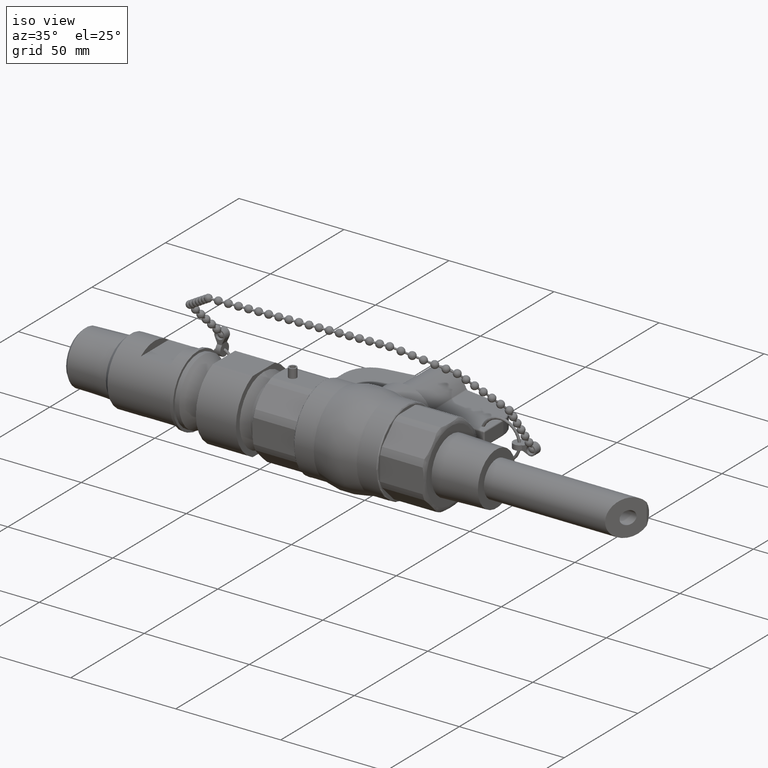
[diagram: clean part render]
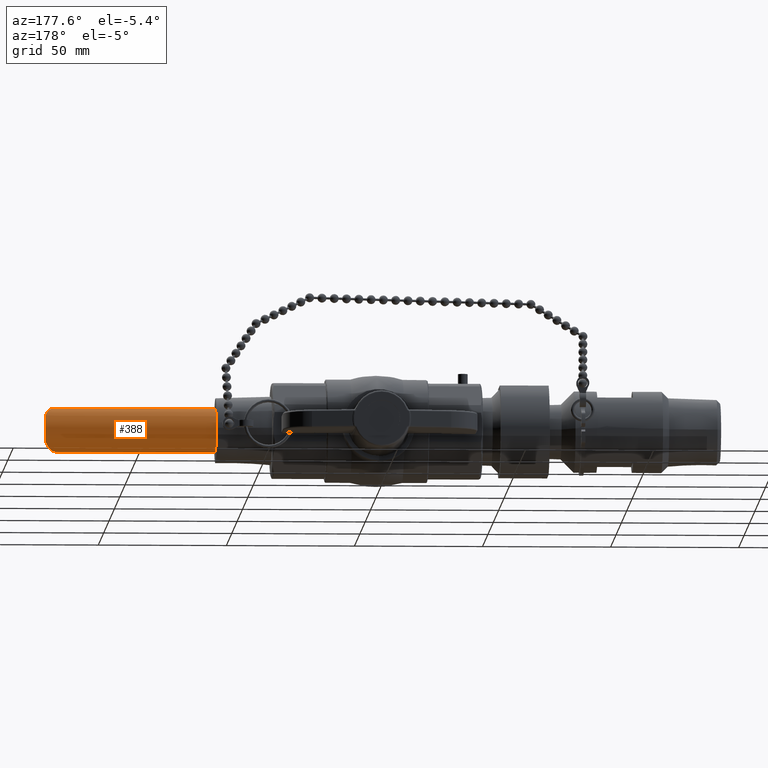
[diagram: tour spotlight — one face highlighted and labeled with its STEP entity id]
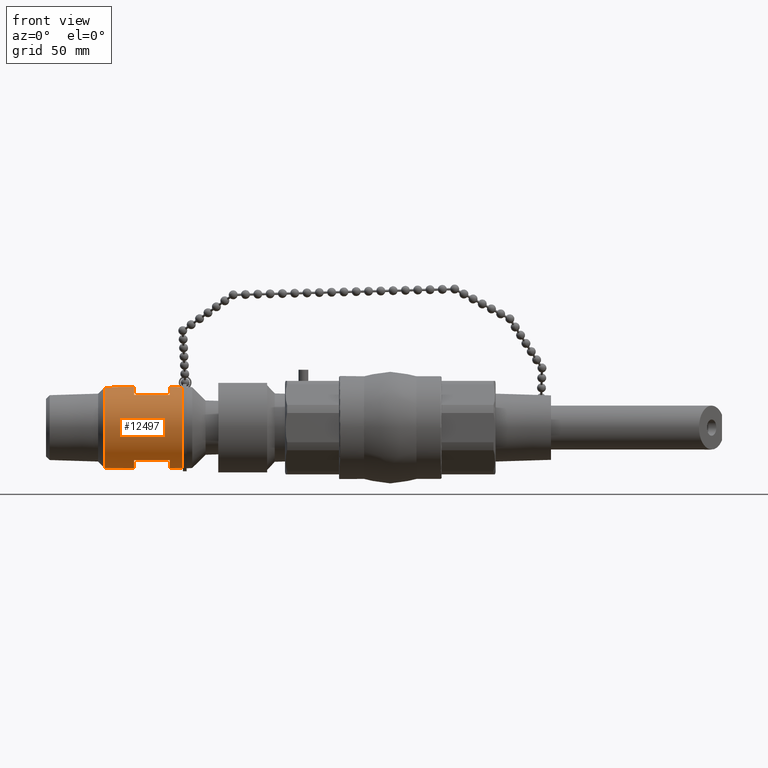
[diagram: tour spotlight — one face highlighted and labeled with its STEP entity id]
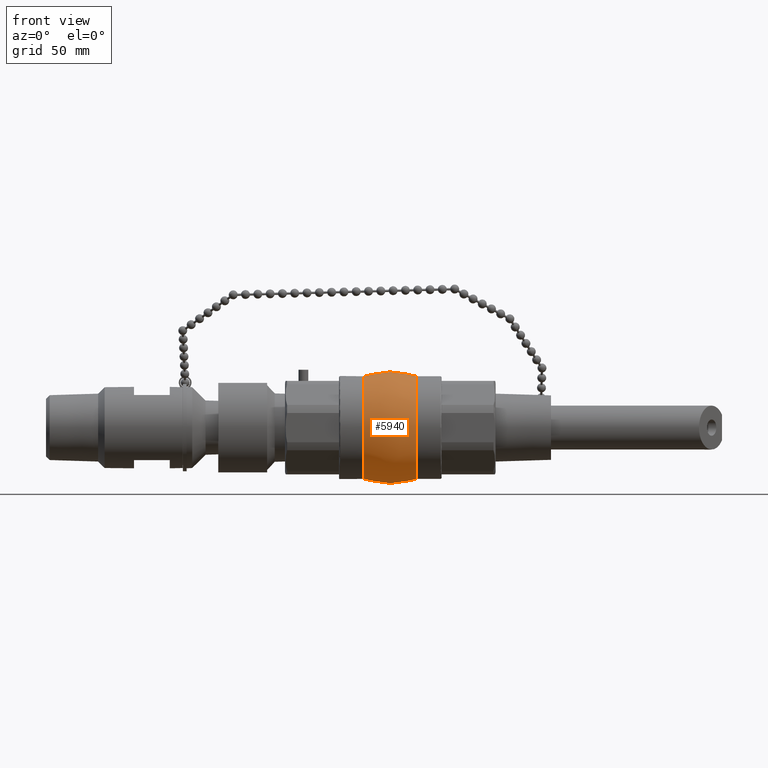
[diagram: tour spotlight — one face highlighted and labeled with its STEP entity id]
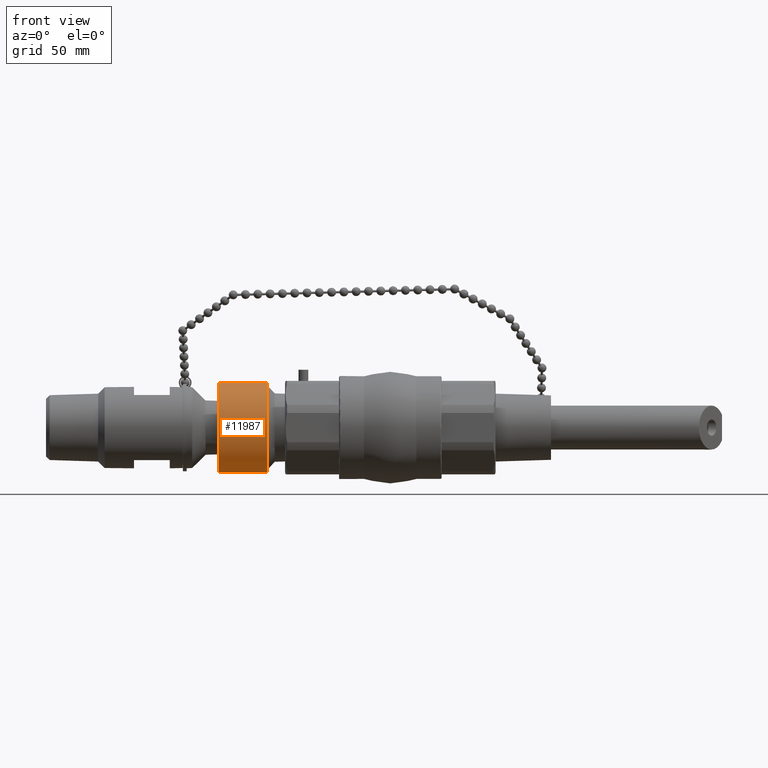
[diagram: tour spotlight — one face highlighted and labeled with its STEP entity id]
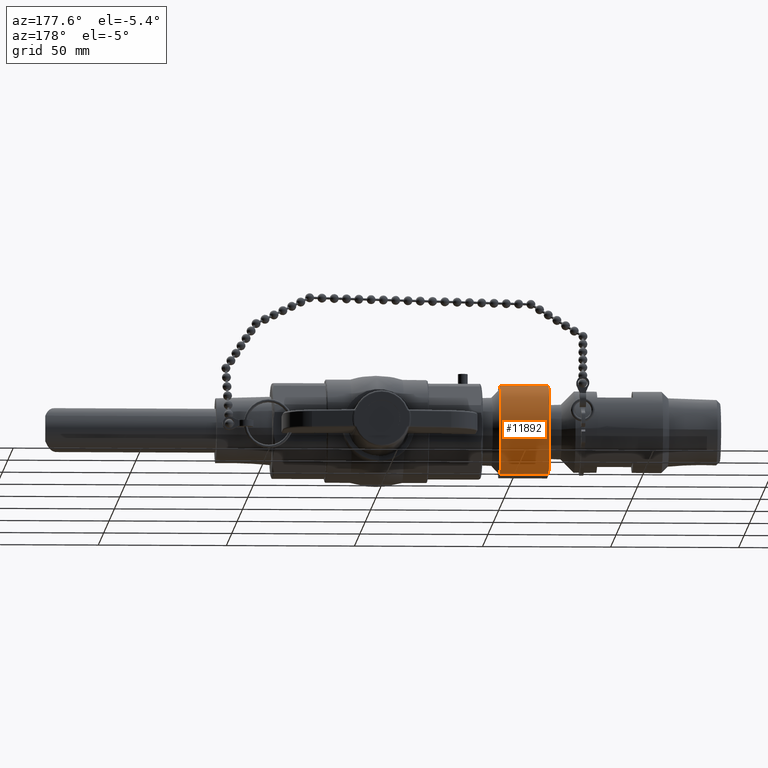
[diagram: tour spotlight — one face highlighted and labeled with its STEP entity id]
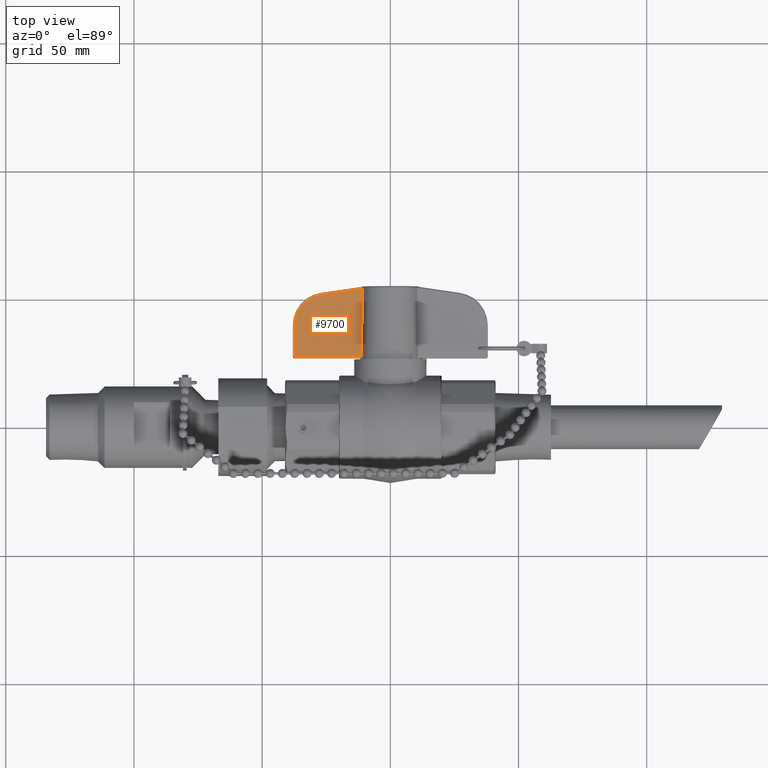
[diagram: tour spotlight — one face highlighted and labeled with its STEP entity id]
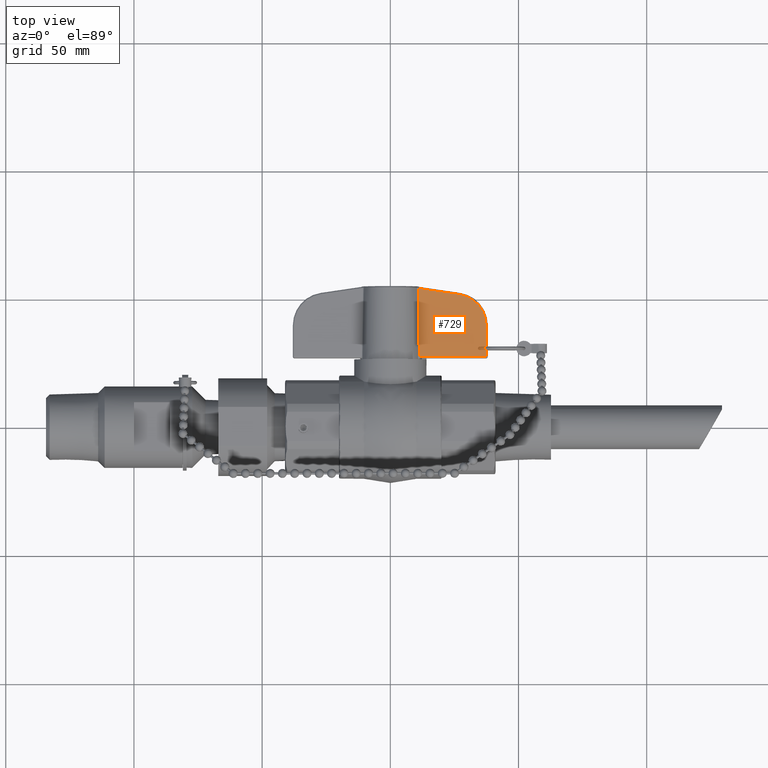
[diagram: tour spotlight — one face highlighted and labeled with its STEP entity id]
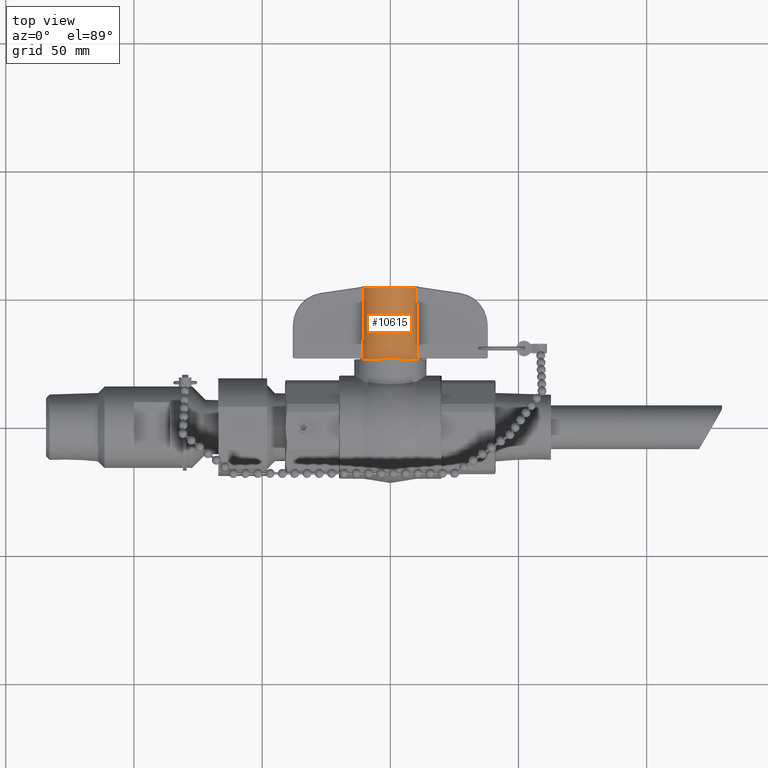
[diagram: tour spotlight — one face highlighted and labeled with its STEP entity id]
A machine part: a face-by-face anatomy tour. The part has 380 B-rep faces; the first image is the clean iso view, then the 8 largest visible faces are spotlighted one at a time (largest first), each with its STEP entity span.

Face 1 — auxiliary view, entity #388. In plain terms, the highlighted cylindrical surface (bore or boss wall) has radius 8.5725 mm, axis along (1, -0, 0).
Definition (entity closure, byte-faithful):
#311=CARTESIAN_POINT('',(2.468000000000000,-0.337500000000001,1.433204E-016));
#312=VERTEX_POINT('',#311);
#313=CARTESIAN_POINT('',(2.468000000000000,3.487384E-016,1.019886E-016));
#314=DIRECTION('',(-1.0,0.0,0.0));
#315=DIRECTION('',(0.0,1.0,0.0));
#316=AXIS2_PLACEMENT_3D('',#313,#314,#315);
#317=CIRCLE('',#316,0.337500000000002);
#318=EDGE_CURVE('',#312,#312,#317,.T.);
#360=CARTESIAN_POINT('',(1.528000000000000,4.491731E-016,-3.260173E-017));
#361=DIRECTION('',(1.0,-1.068455E-016,1.431812E-016));
#362=DIRECTION('',(0.0,1.0,0.0));
#363=AXIS2_PLACEMENT_3D('',#360,#361,#362);
#364=CYLINDRICAL_SURFACE('',#363,0.337500000000002);
#365=CARTESIAN_POINT('',(5.093000000000000,0.274500000000003,-0.196356818063441));
#366=VERTEX_POINT('',#365);
#367=CARTESIAN_POINT('',(5.093000000000000,0.274500000000003,0.196356818063442));
#368=VERTEX_POINT('',#367);
#369=CARTESIAN_POINT('',(4.934517351107446,8.520215E-017,4.551475E-016));
#370=DIRECTION('',(-0.866025403784438,0.500000000000000,-1.239986E-016));
#371=DIRECTION('',(0.500000000000000,0.866025403784438,7.159060E-017));
#372=AXIS2_PLACEMENT_3D('',#369,#370,#371);
#373=ELLIPSE('',#372,0.389711431702999,0.337500000000002);
#374=EDGE_CURVE('',#366,#368,#373,.T.);
#375=ORIENTED_EDGE('',*,*,#374,.T.);
#376=CARTESIAN_POINT('',(5.093000000000000,6.826899E-017,4.778392E-016));
#377=DIRECTION('',(1.0,0.0,0.0));
#378=DIRECTION('',(0.0,1.0,0.0));
#379=AXIS2_PLACEMENT_3D('',#376,#377,#378);
#380=CIRCLE('',#379,0.337500000000003);
#381=EDGE_CURVE('',#366,#368,#380,.T.);
#382=ORIENTED_EDGE('',*,*,#381,.F.);
#383=EDGE_LOOP('',(#375,#382));
#384=FACE_OUTER_BOUND('',#383,.T.);
#385=ORIENTED_EDGE('',*,*,#318,.F.);
#386=EDGE_LOOP('',(#385));
#387=FACE_BOUND('',#386,.T.);
#388=ADVANCED_FACE('',(#384,#387),#364,.T.);

Face 2 — front view, entity #12497. In plain terms, the highlighted cylindrical surface (bore or boss wall) has radius 15.875 mm, axis along (1, -0, 0).
Definition (entity closure, byte-faithful):
#12143=CARTESIAN_POINT('',(-3.186999999999999,0.625000000000000,-7.077011E-016));
#12144=VERTEX_POINT('',#12143);
#12145=CARTESIAN_POINT('',(-3.186999999999999,2.492252E-016,-7.077011E-016));
#12146=DIRECTION('',(1.0,0.0,0.0));
#12147=DIRECTION('',(0.0,1.0,0.0));
#12148=AXIS2_PLACEMENT_3D('',#12145,#12146,#12147);
#12149=CIRCLE('',#12148,0.625000000000000);
#12150=EDGE_CURVE('',#12144,#12144,#12149,.T.);
#12163=CARTESIAN_POINT('',(-4.387000000000001,0.625000000000000,-8.795185E-016));
#12164=VERTEX_POINT('',#12163);
#12165=CARTESIAN_POINT('',(-4.387000000000001,2.492252E-016,-8.795185E-016));
#12166=DIRECTION('',(1.0,0.0,0.0));
#12167=DIRECTION('',(0.0,1.0,0.0));
#12168=AXIS2_PLACEMENT_3D('',#12165,#12166,#12167);
#12169=CIRCLE('',#12168,0.625000000000000);
#12170=EDGE_CURVE('',#12164,#12164,#12169,.T.);
#12238=CARTESIAN_POINT('',(-3.787000000000000,2.492252E-016,-7.936098E-016));
#12239=DIRECTION('',(1.0,-4.312304E-031,1.431812E-016));
#12240=DIRECTION('',(0.0,1.0,0.0));
#12241=AXIS2_PLACEMENT_3D('',#12238,#12239,#12240);
#12242=CYLINDRICAL_SURFACE('',#12241,0.625000000000000);
#12243=ORIENTED_EDGE('',*,*,#12150,.F.);
#12244=EDGE_LOOP('',(#12243));
#12245=FACE_OUTER_BOUND('',#12244,.T.);
#12246=CARTESIAN_POINT('',(-3.537000000000000,0.624658342243656,-0.020662900701695));
#12247=VERTEX_POINT('',#12246);
#12248=CARTESIAN_POINT('',(-3.537000000000000,0.623720436847019,-0.039972698925194));
#12249=VERTEX_POINT('',#12248);
#12250=CARTESIAN_POINT('',(-3.537000000000000,2.492252E-016,-7.578145E-016));
#12251=DIRECTION('',(-1.0,0.0,0.0));
#12252=DIRECTION('',(0.0,1.0,0.0));
#12253=AXIS2_PLACEMENT_3D('',#12250,#12251,#12252);
#12254=CIRCLE('',#12253,0.625000000000000);
#12255=EDGE_CURVE('',#12247,#12249,#12254,.T.);
#12256=ORIENTED_EDGE('',*,*,#12255,.T.);
#12257=CARTESIAN_POINT('',(-3.386999999999998,0.625000000000000,-7.365767E-016));
#12258=VERTEX_POINT('',#12257);
#12259=CARTESIAN_POINT('',(-3.537000000000000,0.623720436847019,-0.039972698925194));
#12260=CARTESIAN_POINT('',(-3.528666666666667,0.623862561998753,-0.037755026260849));
#12261=CARTESIAN_POINT('',(-3.514083333333332,0.624090582541828,-0.033872772584588));
#12262=CARTESIAN_POINT('',(-3.497416666666671,0.624309754583237,-0.029433699923929));
#12263=CARTESIAN_POINT('',(-3.484916666666670,0.624456374058254,-0.026103589776494));
#12264=CARTESIAN_POINT('',(-3.476583333333337,0.624545239561686,-0.023883137200149));
#12265=CARTESIAN_POINT('',(-3.466166666666671,0.624645218051794,-0.021107156760391));
#12266=CARTESIAN_POINT('',(-3.457833333333337,0.624716317280063,-0.018886064321693));
#12267=CARTESIAN_POINT('',(-3.447416666666666,0.624794084964382,-0.016109372893451));
#12268=CARTESIAN_POINT('',(-3.439083333333332,0.624847413367492,-0.013887782741573));
#12269=CARTESIAN_POINT('',(-3.428666666666667,0.624902965268728,-0.011110558032144));
#12270=CARTESIAN_POINT('',(-3.420333333333333,0.624938519433846,-0.008888612348097));
#12271=CARTESIAN_POINT('',(-3.409916666666665,0.624971851996049,-0.006111032098916));
#12272=CARTESIAN_POINT('',(-3.399499999999996,0.624994074062527,-0.003333333333352));
#12273=CARTESIAN_POINT('',(-3.391166666666665,0.625000000000000,-0.001111111111112));
#12274=CARTESIAN_POINT('',(-3.386999999999998,0.625000000000000,-7.365767E-016));
#12275=B_SPLINE_CURVE_WITH_KNOTS('',3,(#12259,#12260,#12261,#12262,#12263,#12264,#12265,#12266,#12267,#12268,#12269,#12270,#12271,#12272,#12273,#12274),.UNSPECIFIED.,.F.,.U.,(4,1,1,1,1,1,1,1,1,1,1,1,1,4),(-0.394314037285005,-0.328595031070837,-0.279305776410212,-0.262876024856670,-0.230016521749586,-0.213586770196044,-0.180727267088961,-0.164297515535419,-0.131438012428335,-0.115008260874793,-0.082148757767709,-0.065719006214167,-0.032859503107084,0.0),.UNSPECIFIED.);
#12276=EDGE_CURVE('',#12249,#12258,#12275,.T.);
#12277=ORIENTED_EDGE('',*,*,#12276,.T.);
#12278=CARTESIAN_POINT('',(-3.536999999999999,0.623720436847019,0.039972698925193));
#12279=VERTEX_POINT('',#12278);
#12280=CARTESIAN_POINT('',(-3.387000000000000,0.625000000000000,-7.527284E-016));
#12281=CARTESIAN_POINT('',(-3.395333333333333,0.625000000000000,0.002222222222221));
#12282=CARTESIAN_POINT('',(-3.409916666666662,0.624979259064616,0.006111111110902));
#12283=CARTESIAN_POINT('',(-3.426583333333332,0.624914075650919,0.010555113090304));
#12284=CARTESIAN_POINT('',(-3.439083333333330,0.624847413367235,0.013887782741565));
#12285=CARTESIAN_POINT('',(-3.447416666666664,0.624794084964529,0.016109372893453));
#12286=CARTESIAN_POINT('',(-3.457833333333329,0.624716317280025,0.018886064321691));
#12287=CARTESIAN_POINT('',(-3.466166666666664,0.624645218051830,0.021107156760390));
#12288=CARTESIAN_POINT('',(-3.476583333333334,0.624545239561538,0.023883137200141));
#12289=CARTESIAN_POINT('',(-3.484916666666665,0.624456374058511,0.026103589776503));
#12290=CARTESIAN_POINT('',(-3.495333333333331,0.624334191160828,0.028878681565959));
#12291=CARTESIAN_POINT('',(-3.503666666666665,0.624227565070497,0.031098352171786));
#12292=CARTESIAN_POINT('',(-3.514083333333330,0.624083185584445,0.033872377705979));
#12293=CARTESIAN_POINT('',(-3.524500000000000,0.623927710769327,0.036645810927514));
#12294=CARTESIAN_POINT('',(-3.532833333333332,0.623791499422886,0.038863862593020));
#12295=CARTESIAN_POINT('',(-3.536999999999999,0.623720436847019,0.039972698925193));
#12296=B_SPLINE_CURVE_WITH_KNOTS('',3,(#12280,#12281,#12282,#12283,#12284,#12285,#12286,#12287,#12288,#12289,#12290,#12291,#12292,#12293,#12294,#12295),.UNSPECIFIED.,.F.,.U.,(4,1,1,1,1,1,1,1,1,1,1,1,1,4),(-0.394314037285005,-0.328595031070837,-0.279305776410212,-0.262876024856670,-0.230016521749586,-0.213586770196044,-0.180727267088961,-0.164297515535419,-0.131438012428335,-0.115008260874793,-0.082148757767709,-0.065719006214167,-0.032859503107084,0.0),.UNSPECIFIED.);
#12297=EDGE_CURVE('',#12258,#12279,#12296,.T.);
#12298=ORIENTED_EDGE('',*,*,#12297,.T.);
#12299=CARTESIAN_POINT('',(-3.537000000000000,0.624658342243656,0.020662900701694));
#12300=VERTEX_POINT('',#12299);
#12301=CARTESIAN_POINT('',(-3.536999999999997,2.492252E-016,-7.578145E-016));
#12302=DIRECTION('',(-1.0,0.0,-3.652217E-014));
#12303=DIRECTION('',(0.0,1.0,0.0));
#12304=AXIS2_PLACEMENT_3D('',#12301,#12302,#12303);
#12305=CIRCLE('',#12304,0.625000000000000);
#12306=EDGE_CURVE('',#12279,#12300,#12305,.T.);
#12307=ORIENTED_EDGE('',*,*,#12306,.T.);
#12308=CARTESIAN_POINT('',(-3.459499999999999,0.625000000000000,-7.452338E-016));
#12309=VERTEX_POINT('',#12308);
#12310=CARTESIAN_POINT('',(-3.537000000000000,0.624658342243656,0.020662900701694));
#12311=CARTESIAN_POINT('',(-3.532694444444445,0.624696300757538,0.019515380191498));
#12312=CARTESIAN_POINT('',(-3.525159722222221,0.624757194544063,0.017507036253815));
#12313=CARTESIAN_POINT('',(-3.516548611111114,0.624815718369598,0.015211480947638));
#12314=CARTESIAN_POINT('',(-3.510090277777779,0.624854866858367,0.013489703323744));
#12315=CARTESIAN_POINT('',(-3.505784722222223,0.624878593586902,0.012341799270770));
#12316=CARTESIAN_POINT('',(-3.500402777777781,0.624905286498493,0.010906861996272));
#12317=CARTESIAN_POINT('',(-3.496097222222225,0.624924268367749,0.009758869678736));
#12318=CARTESIAN_POINT('',(-3.490715277777782,0.624945029994155,0.008323834331386));
#12319=CARTESIAN_POINT('',(-3.486409722222227,0.624959266679861,0.007175773362073));
#12320=CARTESIAN_POINT('',(-3.481027777777784,0.624974096666367,0.005740664458618));
#12321=CARTESIAN_POINT('',(-3.476722222222228,0.624983587925309,0.004592554451483));
#12322=CARTESIAN_POINT('',(-3.471340277777777,0.624992486018506,0.003157396509927));
#12323=CARTESIAN_POINT('',(-3.465958333333334,0.624998418106174,0.001722222222222));
#12324=CARTESIAN_POINT('',(-3.461652777777776,0.625000000000000,0.000574074074073));
#12325=CARTESIAN_POINT('',(-3.459499999999999,0.625000000000000,-7.452338E-016));
#12326=B_SPLINE_CURVE_WITH_KNOTS('',3,(#12310,#12311,#12312,#12313,#12314,#12315,#12316,#12317,#12318,#12319,#12320,#12321,#12322,#12323,#12324,#12325),.UNSPECIFIED.,.F.,.U.,(4,1,1,1,1,1,1,1,1,1,1,1,1,4),(-0.203728919263919,-0.169774099386600,-0.144307984478610,-0.135819279509280,-0.118841869570620,-0.110353164601290,-0.093375754662630,-0.084887049693300,-0.067909639754640,-0.059420934785310,-0.042443524846650,-0.033954819877320,-0.016977409938660,0.0),.UNSPECIFIED.);
#12327=EDGE_CURVE('',#12300,#12309,#12326,.T.);
#12328=ORIENTED_EDGE('',*,*,#12327,.T.);
#12329=CARTESIAN_POINT('',(-3.459500000000000,0.625000000000000,-7.849638E-016));
#12330=CARTESIAN_POINT('',(-3.463805555555556,0.625000000000000,-0.001148148148149));
#12331=CARTESIAN_POINT('',(-3.471340277777783,0.624994463360617,-0.003157407407401));
#12332=CARTESIAN_POINT('',(-3.479951388888896,0.624977062663807,-0.005453642677931));
#12333=CARTESIAN_POINT('',(-3.486409722222228,0.624959266679844,-0.007175773362074));
#12334=CARTESIAN_POINT('',(-3.490715277777787,0.624945029994167,-0.008323834331388));
#12335=CARTESIAN_POINT('',(-3.496097222222230,0.624924268367748,-0.009758869678738));
#12336=CARTESIAN_POINT('',(-3.500402777777784,0.624905286498498,-0.010906861996273));
#12337=CARTESIAN_POINT('',(-3.505784722222232,0.624878593586892,-0.012341799270771));
#12338=CARTESIAN_POINT('',(-3.510090277777781,0.624854866858386,-0.013489703323746));
#12339=CARTESIAN_POINT('',(-3.515472222222228,0.624822243117615,-0.014924518010321));
#12340=CARTESIAN_POINT('',(-3.519777777777782,0.624793771935222,-0.016072314187460));
#12341=CARTESIAN_POINT('',(-3.525159722222226,0.624755217922595,-0.017506981773134));
#12342=CARTESIAN_POINT('',(-3.530541666666667,0.624713698985398,-0.018941567637977));
#12343=CARTESIAN_POINT('',(-3.534847222222223,0.624677321500597,-0.020089140446597));
#12344=CARTESIAN_POINT('',(-3.537000000000001,0.624658342243656,-0.020662900701695));
#12345=B_SPLINE_CURVE_WITH_KNOTS('',3,(#12329,#12330,#12331,#12332,#12333,#12334,#12335,#12336,#12337,#12338,#12339,#12340,#12341,#12342,#12343,#12344),.UNSPECIFIED.,.F.,.U.,(4,1,1,1,1,1,1,1,1,1,1,1,1,4),(-0.203728919263919,-0.169774099386599,-0.144307984478609,-0.135819279509279,-0.118841869570619,-0.110353164601289,-0.093375754662629,-0.084887049693299,-0.067909639754640,-0.059420934785310,-0.042443524846650,-0.033954819877320,-0.016977409938660,0.0),.UNSPECIFIED.);
#12346=EDGE_CURVE('',#12309,#12247,#12345,.T.);
#12347=ORIENTED_EDGE('',*,*,#12346,.T.);
#12348=EDGE_LOOP('',(#12256,#12277,#12298,#12307,#12328,#12347));
#12349=FACE_BOUND('',#12348,.T.);
#12350=CARTESIAN_POINT('',(-3.937000000000000,0.624920001706652,-0.009999573338795));
#12351=VERTEX_POINT('',#12350);
#12352=CARTESIAN_POINT('',(-3.787000000000000,0.624920001706653,-0.009999573338795));
#12353=VERTEX_POINT('',#12352);
#12354=CARTESIAN_POINT('',(-3.937000000000000,0.624920001706652,-0.009999573338795));
#12355=DIRECTION('',(1.0,0.0,0.0));
#12356=VECTOR('',#12355,0.150000000000000);
#12357=LINE('',#12354,#12356);
#12358=EDGE_CURVE('',#12351,#12353,#12357,.T.);
#12359=ORIENTED_EDGE('',*,*,#12358,.T.);
#12360=CARTESIAN_POINT('',(-3.787000000000000,0.624920001706652,0.009999573338794));
#12361=VERTEX_POINT('',#12360);
#12362=CARTESIAN_POINT('',(-3.786999999999998,2.492252E-016,-7.936098E-016));
#12363=DIRECTION('',(1.0,0.0,0.0));
#12364=DIRECTION('',(0.0,1.0,0.0));
#12365=AXIS2_PLACEMENT_3D('',#12362,#12363,#12364);
#12366=CIRCLE('',#12365,0.625000000000000);
#12367=EDGE_CURVE('',#12353,#12361,#12366,.T.);
#12368=ORIENTED_EDGE('',*,*,#12367,.T.);
#12369=CARTESIAN_POINT('',(-3.937000000000000,0.624920001706653,0.009999573338794));
#12370=VERTEX_POINT('',#12369);
#12371=CARTESIAN_POINT('',(-3.787000000000000,0.624920001706652,0.009999573338794));
#12372=DIRECTION('',(-1.0,0.0,0.0));
#12373=VECTOR('',#12372,0.150000000000000);
#12374=LINE('',#12371,#12373);
#12375=EDGE_CURVE('',#12361,#12370,#12374,.T.);
#12376=ORIENTED_EDGE('',*,*,#12375,.T.);
#12377=CARTESIAN_POINT('',(-3.936999999999999,2.492252E-016,-8.150870E-016));
#12378=DIRECTION('',(-1.0,0.0,0.0));
#12379=DIRECTION('',(0.0,1.0,0.0));
#12380=AXIS2_PLACEMENT_3D('',#12377,#12378,#12379);
#12381=CIRCLE('',#12380,0.625000000000000);
#12382=EDGE_CURVE('',#12370,#12351,#12381,.T.);
#12383=ORIENTED_EDGE('',*,*,#12382,.T.);
#12384=EDGE_LOOP('',(#12359,#12368,#12376,#12383));
#12385=FACE_BOUND('',#12384,.T.);
#12386=CARTESIAN_POINT('',(-3.737000000000000,0.624920001706652,-0.009999573338795));
#12387=VERTEX_POINT('',#12386);
#12388=CARTESIAN_POINT('',(-3.586999999999998,0.624920001706653,-0.009999573338795));
#12389=VERTEX_POINT('',#12388);
#12390=CARTESIAN_POINT('',(-3.737000000000000,0.624920001706652,-0.009999573338795));
#12391=DIRECTION('',(1.0,0.0,0.0));
#12392=VECTOR('',#12391,0.150000000000002);
#12393=LINE('',#12390,#12392);
#12394=EDGE_CURVE('',#12387,#12389,#12393,.T.);
#12395=ORIENTED_EDGE('',*,*,#12394,.T.);
#12396=CARTESIAN_POINT('',(-3.587000000000001,0.624920001706652,0.009999573338794));
#12397=VERTEX_POINT('',#12396);
#12398=CARTESIAN_POINT('',(-3.587000000000001,2.492252E-016,-7.649735E-016));
#12399=DIRECTION('',(1.0,0.0,3.516837E-014));
#12400=DIRECTION('',(0.0,1.0,0.0));
#12401=AXIS2_PLACEMENT_3D('',#12398,#12399,#12400);
#12402=CIRCLE('',#12401,0.625000000000000);
#12403=EDGE_CURVE('',#12389,#12397,#12402,.T.);
#12404=ORIENTED_EDGE('',*,*,#12403,.T.);
#12405=CARTESIAN_POINT('',(-3.736999999999999,0.624920001706653,0.009999573338794));
#12406=VERTEX_POINT('',#12405);
#12407=CARTESIAN_POINT('',(-3.587000000000001,0.624920001706652,0.009999573338794));
#12408=DIRECTION('',(-1.0,0.0,0.0));
#12409=VECTOR('',#12408,0.149999999999998);
#12410=LINE('',#12407,#12409);
#12411=EDGE_CURVE('',#12397,#12406,#12410,.T.);
#12412=ORIENTED_EDGE('',*,*,#12411,.T.);
#12413=CARTESIAN_POINT('',(-3.737000000000000,2.492252E-016,-7.864507E-016));
#12414=DIRECTION('',(-1.0,0.0,0.0));
#12415=DIRECTION('',(0.0,1.0,0.0));
#12416=AXIS2_PLACEMENT_3D('',#12413,#12414,#12415);
#12417=CIRCLE('',#12416,0.625000000000000);
#12418=EDGE_CURVE('',#12406,#12387,#12417,.T.);
#12419=ORIENTED_EDGE('',*,*,#12418,.T.);
#12420=EDGE_LOOP('',(#12395,#12404,#12412,#12419));
#12421=FACE_BOUND('',#12420,.T.);
#12422=CARTESIAN_POINT('',(-3.387000000000000,0.375000000000000,0.499999999999999));
#12423=VERTEX_POINT('',#12422);
#12424=CARTESIAN_POINT('',(-3.387000000000000,-0.375000000000000,0.499999999999999));
#12425=VERTEX_POINT('',#12424);
#12426=CARTESIAN_POINT('',(-3.387000000000000,2.492252E-016,-7.363373E-016));
#12427=DIRECTION('',(1.0,0.0,0.0));
#12428=DIRECTION('',(0.0,1.0,0.0));
#12429=AXIS2_PLACEMENT_3D('',#12426,#12427,#12428);
#12430=CIRCLE('',#12429,0.625000000000000);
#12431=EDGE_CURVE('',#12423,#12425,#12430,.T.);
#12432=ORIENTED_EDGE('',*,*,#12431,.T.);
#12433=CARTESIAN_POINT('',(-3.936999999999999,-0.375000000000000,0.499999999999999));
#12434=VERTEX_POINT('',#12433);
#12435=CARTESIAN_POINT('',(-3.387000000000000,-0.375000000000000,0.499999999999999));
#12436=DIRECTION('',(-1.0,0.0,0.0));
#12437=VECTOR('',#12436,0.549999999999999);
#12438=LINE('',#12435,#12437);
#12439=EDGE_CURVE('',#12425,#12434,#12438,.T.);
#12440=ORIENTED_EDGE('',*,*,#12439,.T.);
#12441=CARTESIAN_POINT('',(-3.936999999999999,0.375000000000000,0.499999999999999));
#12442=VERTEX_POINT('',#12441);
#12443=CARTESIAN_POINT('',(-3.936999999999999,2.492252E-016,-8.150870E-016));
#12444=DIRECTION('',(-1.0,0.0,0.0));
#12445=DIRECTION('',(0.0,1.0,0.0));
#12446=AXIS2_PLACEMENT_3D('',#12443,#12444,#12445);
#12447=CIRCLE('',#12446,0.625000000000000);
#12448=EDGE_CURVE('',#12434,#12442,#12447,.T.);
#12449=ORIENTED_EDGE('',*,*,#12448,.T.);
#12450=CARTESIAN_POINT('',(-3.936999999999999,0.375000000000000,0.499999999999999));
#12451=DIRECTION('',(1.0,0.0,0.0));
#12452=VECTOR('',#12451,0.549999999999999);
#12453=LINE('',#12450,#12452);
#12454=EDGE_CURVE('',#12442,#12423,#12453,.T.);
#12455=ORIENTED_EDGE('',*,*,#12454,.T.);
#12456=EDGE_LOOP('',(#12432,#12440,#12449,#12455));
#12457=FACE_BOUND('',#12456,.T.);
#12458=CARTESIAN_POINT('',(-3.936999999999999,-0.375000000000000,-0.500000000000001));
#12459=VERTEX_POINT('',#12458);
#12460=CARTESIAN_POINT('',(-3.387000000000000,-0.375000000000000,-0.500000000000001));
#12461=VERTEX_POINT('',#12460);
#12462=CARTESIAN_POINT('',(-3.936999999999999,-0.375000000000000,-0.500000000000001));
#12463=DIRECTION('',(1.0,0.0,0.0));
#12464=VECTOR('',#12463,0.549999999999999);
#12465=LINE('',#12462,#12464);
#12466=EDGE_CURVE('',#12459,#12461,#12465,.T.);
#12467=ORIENTED_EDGE('',*,*,#12466,.T.);
#12468=CARTESIAN_POINT('',(-3.387000000000000,0.375000000000000,-0.500000000000001));
#12469=VERTEX_POINT('',#12468);
#12470=CARTESIAN_POINT('',(-3.387000000000000,2.492252E-016,-7.363373E-016));
#12471=DIRECTION('',(1.0,0.0,0.0));
#12472=DIRECTION('',(0.0,1.0,0.0));
#12473=AXIS2_PLACEMENT_3D('',#12470,#12471,#12472);
#12474=CIRCLE('',#12473,0.625000000000000);
#12475=EDGE_CURVE('',#12461,#12469,#12474,.T.);
#12476=ORIENTED_EDGE('',*,*,#12475,.T.);
#12477=CARTESIAN_POINT('',(-3.936999999999999,0.375000000000000,-0.500000000000001));
#12478=VERTEX_POINT('',#12477);
#12479=CARTESIAN_POINT('',(-3.387000000000000,0.375000000000000,-0.500000000000001));
#12480=DIRECTION('',(-1.0,0.0,0.0));
#12481=VECTOR('',#12480,0.549999999999999);
#12482=LINE('',#12479,#12481);
#12483=EDGE_CURVE('',#12469,#12478,#12482,.T.);
#12484=ORIENTED_EDGE('',*,*,#12483,.T.);
#12485=CARTESIAN_POINT('',(-3.936999999999999,2.492252E-016,-8.150870E-016));
#12486=DIRECTION('',(-1.0,0.0,0.0));
#12487=DIRECTION('',(0.0,1.0,0.0));
#12488=AXIS2_PLACEMENT_3D('',#12485,#12486,#12487);
#12489=CIRCLE('',#12488,0.625000000000000);
#12490=EDGE_CURVE('',#12478,#12459,#12489,.T.);
#12491=ORIENTED_EDGE('',*,*,#12490,.T.);
#12492=EDGE_LOOP('',(#12467,#12476,#12484,#12491));
#12493=FACE_BOUND('',#12492,.T.);
#12494=ORIENTED_EDGE('',*,*,#12170,.T.);
#12495=EDGE_LOOP('',(#12494));
#12496=FACE_BOUND('',#12495,.T.);
#12497=ADVANCED_FACE('',(#12245,#12349,#12385,#12421,#12457,#12493,#12496),#12242,.T.);

Face 3 — front view, entity #5940. In plain terms, the highlighted face is a freeform B-spline surface patch.
Definition (entity closure, byte-faithful):
#5851=CARTESIAN_POINT('',(0.402527454671867,9.705216E-017,-0.792491042265650));
#5852=CARTESIAN_POINT('',(2.775558E-017,1.131366E-016,-0.923830075785592));
#5853=CARTESIAN_POINT('',(-0.402527454671866,9.705216E-017,-0.792491042265650));
#5854=CARTESIAN_POINT('',(0.402527454671867,0.792491042265650,-0.792491042265650));
#5855=CARTESIAN_POINT('',(2.775558E-017,0.923830075785592,-0.923830075785591));
#5856=CARTESIAN_POINT('',(-0.402527454671866,0.792491042265650,-0.792491042265650));
#5857=CARTESIAN_POINT('',(0.402527454671867,0.792491042265650,1.463476E-016));
#5858=CARTESIAN_POINT('',(-8.538098E-017,0.923830075785592,1.131366E-016));
#5859=CARTESIAN_POINT('',(-0.402527454671866,0.792491042265650,4.775677E-017));
#5860=CARTESIAN_POINT('',(0.402527454671866,0.792491042265650,0.792491042265650));
#5861=CARTESIAN_POINT('',(-1.985175E-016,0.923830075785591,0.923830075785592));
#5862=CARTESIAN_POINT('',(-0.402527454671867,0.792491042265650,0.792491042265650));
#5863=CARTESIAN_POINT('',(0.402527454671867,-9.705216E-017,0.792491042265650));
#5864=CARTESIAN_POINT('',(-1.985175E-016,-1.131366E-016,0.923830075785592));
#5865=CARTESIAN_POINT('',(-0.402527454671867,-9.705216E-017,0.792491042265650));
#5866=CARTESIAN_POINT('',(0.402527454671866,-0.792491042265650,0.792491042265650));
#5867=CARTESIAN_POINT('',(-1.985175E-016,-0.923830075785592,0.923830075785591));
#5868=CARTESIAN_POINT('',(-0.402527454671867,-0.792491042265650,0.792491042265650));
#5869=CARTESIAN_POINT('',(0.402527454671867,-0.792491042265650,-4.775677E-017));
#5870=CARTESIAN_POINT('',(-8.538098E-017,-0.923830075785592,-1.131366E-016));
#5871=CARTESIAN_POINT('',(-0.402527454671866,-0.792491042265650,-1.463476E-016));
#5872=CARTESIAN_POINT('',(0.402527454671867,-0.792491042265650,-0.792491042265650));
#5873=CARTESIAN_POINT('',(2.775558E-017,-0.923830075785591,-0.923830075785592));
#5874=CARTESIAN_POINT('',(-0.402527454671866,-0.792491042265650,-0.792491042265650));
#5875=CARTESIAN_POINT('',(0.402527454671867,9.705216E-017,-0.792491042265650));
#5876=CARTESIAN_POINT('',(2.775558E-017,1.131366E-016,-0.923830075785592));
#5877=CARTESIAN_POINT('',(-0.402527454671866,9.705216E-017,-0.792491042265650));
#5885=(BOUNDED_SURFACE()B_SPLINE_SURFACE(2,2,((#5851,#5854,#5857,#5860,#5863,#5866,#5869,#5872,#5875),(#5852,#5855,#5858,#5861,#5864,#5867,#5870,#5873,#5876),(#5853,#5856,#5859,#5862,#5865,#5868,#5871,#5874,#5877)),.UNSPECIFIED.,.F.,.T.,.U.)B_SPLINE_SURFACE_WITH_KNOTS((3,3),(3,2,2,2,3),(-0.315394513240382,0.315394513240382),(0.0,1.570796326794897,3.141592653589793,4.712388980384690,6.283185307179586),.UNSPECIFIED.)GEOMETRIC_REPRESENTATION_ITEM()RATIONAL_B_SPLINE_SURFACE(((1.0,0.707106781186548,1.0,0.707106781186548,1.0,0.707106781186548,1.0,0.707106781186548,1.0),(0.950674078225931,0.672228087411826,0.950674078225931,0.672228087411826,0.950674078225931,0.672228087411826,0.950674078225931,0.672228087411826,0.950674078225931),(1.0,0.707106781186548,1.0,0.707106781186548,1.0,0.707106781186548,1.0,0.707106781186548,1.0)))REPRESENTATION_ITEM('')SURFACE());
#5886=CARTESIAN_POINT('',(0.402500000000000,0.694289204870708,-0.382123998199537));
#5887=VERTEX_POINT('',#5886);
#5888=CARTESIAN_POINT('',(0.402500000000000,0.694289204870708,0.382123998199537));
#5889=VERTEX_POINT('',#5888);
#5890=CARTESIAN_POINT('',(0.402500000000000,0.0,4.929203E-017));
#5891=DIRECTION('',(-1.0,0.0,0.0));
#5892=DIRECTION('',(0.0,1.0,0.0));
#5893=AXIS2_PLACEMENT_3D('',#5890,#5891,#5892);
#5894=CIRCLE('',#5893,0.792500000000000);
#5895=EDGE_CURVE('',#5887,#5889,#5894,.T.);
#5896=ORIENTED_EDGE('',*,*,#5895,.T.);
#5897=CARTESIAN_POINT('',(-0.402500000000000,0.694289204870708,0.382123998199537));
#5898=VERTEX_POINT('',#5897);
#5899=CARTESIAN_POINT('',(0.402500000000000,0.694289204870708,0.382123998199537));
#5900=CARTESIAN_POINT('',(0.366272588698172,0.686778647582645,0.420283164118689));
#5901=CARTESIAN_POINT('',(0.324757810098894,0.679177186437937,0.453143781187078));
#5902=CARTESIAN_POINT('',(0.239478826389135,0.666854707084221,0.502776451669650));
#5903=CARTESIAN_POINT('',(0.196982512229787,0.661937710556527,0.520915818224183));
#5904=CARTESIAN_POINT('',(0.085503317728400,0.653092031130762,0.552797558933748));
#5905=CARTESIAN_POINT('',(0.015411507061169,0.651153513062656,0.559182555543185));
#5906=CARTESIAN_POINT('',(-0.122132030906957,0.655040054361376,0.545676635481533));
#5907=CARTESIAN_POINT('',(-0.187918665550422,0.660597076469248,0.526596741499948));
#5908=CARTESIAN_POINT('',(-0.306177883503262,0.675827286896050,0.467374758510483));
#5909=CARTESIAN_POINT('',(-0.358259362394635,0.685117369753172,0.428723679769029));
#5910=CARTESIAN_POINT('',(-0.402500000000000,0.694289204870708,0.382123998199537));
#5911=B_SPLINE_CURVE_WITH_KNOTS('',3,(#5899,#5900,#5901,#5902,#5903,#5904,#5905,#5906,#5907,#5908,#5909,#5910),.UNSPECIFIED.,.F.,.U.,(4,2,2,2,2,4),(-2.304971812479363,-1.900047198235023,-1.547459075862200,-1.014315308233466,-0.494589476205239,0.0),.UNSPECIFIED.);
#5912=EDGE_CURVE('',#5889,#5898,#5911,.T.);
#5913=ORIENTED_EDGE('',*,*,#5912,.T.);
#5914=CARTESIAN_POINT('',(-0.402500000000000,0.694289204870708,-0.382123998199537));
#5915=VERTEX_POINT('',#5914);
#5916=CARTESIAN_POINT('',(-0.402500000000000,0.0,-4.929203E-017));
#5917=DIRECTION('',(-1.0,0.0,0.0));
#5918=DIRECTION('',(0.0,1.0,0.0));
#5919=AXIS2_PLACEMENT_3D('',#5916,#5917,#5918);
#5920=CIRCLE('',#5919,0.792500000000000);
#5921=EDGE_CURVE('',#5915,#5898,#5920,.T.);
#5922=ORIENTED_EDGE('',*,*,#5921,.F.);
#5923=CARTESIAN_POINT('',(-0.402500000000000,0.694289204870708,-0.382123998199537));
#5924=CARTESIAN_POINT('',(-0.366272588698172,0.686778647582645,-0.420283164118689));
#5925=CARTESIAN_POINT('',(-0.324757810098893,0.679177186437937,-0.453143781187078));
#5926=CARTESIAN_POINT('',(-0.239478826389136,0.666854707084221,-0.502776451669650));
#5927=CARTESIAN_POINT('',(-0.196982512229788,0.661937710556527,-0.520915818224182));
#5928=CARTESIAN_POINT('',(-0.085503317728400,0.653092031130762,-0.552797558933748));
#5929=CARTESIAN_POINT('',(-0.015411507061169,0.651153513062656,-0.559182555543185));
#5930=CARTESIAN_POINT('',(0.122132030906955,0.655040054361376,-0.545676635481533));
#5931=CARTESIAN_POINT('',(0.187918665550419,0.660597076469248,-0.526596741499950));
#5932=CARTESIAN_POINT('',(0.306177883503264,0.675827286896049,-0.467374758510483));
#5933=CARTESIAN_POINT('',(0.358259362394638,0.685117369753173,-0.428723679769026));
#5934=CARTESIAN_POINT('',(0.402500000000000,0.694289204870708,-0.382123998199537));
#5935=B_SPLINE_CURVE_WITH_KNOTS('',3,(#5923,#5924,#5925,#5926,#5927,#5928,#5929,#5930,#5931,#5932,#5933,#5934),.UNSPECIFIED.,.F.,.U.,(4,2,2,2,2,4),(-2.304971812479319,-1.900047198234974,-1.547459075862153,-1.014315308233422,-0.494589476205212,0.0),.UNSPECIFIED.);
#5936=EDGE_CURVE('',#5915,#5887,#5935,.T.);
#5937=ORIENTED_EDGE('',*,*,#5936,.T.);
#5938=EDGE_LOOP('',(#5896,#5913,#5922,#5937));
#5939=FACE_OUTER_BOUND('',#5938,.T.);
#5940=ADVANCED_FACE('',(#5939),#5885,.T.);

Face 4 — front view, entity #11987. In plain terms, the highlighted cylindrical surface (partial cylindrical patch) has radius 19.05 mm, axis along (-1, 0, -0).
Definition (entity closure, byte-faithful):
#11898=CARTESIAN_POINT('',(-1.891999999999999,-0.299739470207044,-0.687500000000001));
#11899=VERTEX_POINT('',#11898);
#11907=CARTESIAN_POINT('',(-1.892000000000000,-0.299739470207045,0.687499999999999));
#11908=VERTEX_POINT('',#11907);
#11915=CARTESIAN_POINT('',(-1.891999999999999,-2.085188E-017,-5.222814E-016));
#11916=DIRECTION('',(-1.0,0.0,0.0));
#11917=DIRECTION('',(0.0,0.0,1.0));
#11918=AXIS2_PLACEMENT_3D('',#11915,#11916,#11917);
#11919=CIRCLE('',#11918,0.750000000000000);
#11920=EDGE_CURVE('',#11899,#11908,#11919,.T.);
#11956=CARTESIAN_POINT('',(-2.267000000000000,-2.085188E-017,-5.759744E-016));
#11957=DIRECTION('',(-1.0,6.737975E-033,-1.431812E-016));
#11958=DIRECTION('',(0.0,0.0,1.0));
#11959=AXIS2_PLACEMENT_3D('',#11956,#11957,#11958);
#11960=CYLINDRICAL_SURFACE('',#11959,0.750000000000000);
#11961=CARTESIAN_POINT('',(-2.642000000000000,-0.299739470207044,-0.687500000000001));
#11962=VERTEX_POINT('',#11961);
#11963=CARTESIAN_POINT('',(-2.642000000000000,-0.299739470207044,-0.687500000000001));
#11964=DIRECTION('',(1.0,0.0,0.0));
#11965=VECTOR('',#11964,0.750000000000000);
#11966=LINE('',#11963,#11965);
#11967=EDGE_CURVE('',#11962,#11899,#11966,.T.);
#11968=ORIENTED_EDGE('',*,*,#11967,.T.);
#11969=ORIENTED_EDGE('',*,*,#11920,.T.);
#11970=CARTESIAN_POINT('',(-2.642000000000000,-0.299739470207045,0.687499999999999));
#11971=VERTEX_POINT('',#11970);
#11972=CARTESIAN_POINT('',(-1.892000000000000,-0.299739470207045,0.687499999999999));
#11973=DIRECTION('',(-1.0,0.0,0.0));
#11974=VECTOR('',#11973,0.750000000000000);
#11975=LINE('',#11972,#11974);
#11976=EDGE_CURVE('',#11908,#11971,#11975,.T.);
#11977=ORIENTED_EDGE('',*,*,#11976,.T.);
#11978=CARTESIAN_POINT('',(-2.642000000000000,-2.085188E-017,-6.296673E-016));
#11979=DIRECTION('',(-1.0,0.0,0.0));
#11980=DIRECTION('',(0.0,0.0,1.0));
#11981=AXIS2_PLACEMENT_3D('',#11978,#11979,#11980);
#11982=CIRCLE('',#11981,0.750000000000000);
#11983=EDGE_CURVE('',#11962,#11971,#11982,.T.);
#11984=ORIENTED_EDGE('',*,*,#11983,.F.);
#11985=EDGE_LOOP('',(#11968,#11969,#11977,#11984));
#11986=FACE_OUTER_BOUND('',#11985,.T.);
#11987=ADVANCED_FACE('',(#11986),#11960,.T.);

Face 5 — auxiliary view, entity #11892. In plain terms, the highlighted cylindrical surface (partial cylindrical patch) has radius 19.05 mm, axis along (-1, 0, -0).
Definition (entity closure, byte-faithful):
#11851=CARTESIAN_POINT('',(-2.267000000000000,-2.085188E-017,-5.759744E-016));
#11852=DIRECTION('',(-1.0,6.737975E-033,-1.431812E-016));
#11853=DIRECTION('',(0.0,0.0,1.0));
#11854=AXIS2_PLACEMENT_3D('',#11851,#11852,#11853);
#11855=CYLINDRICAL_SURFACE('',#11854,0.750000000000000);
#11856=CARTESIAN_POINT('',(-1.891999999999999,0.299739470207045,-0.687500000000001));
#11857=VERTEX_POINT('',#11856);
#11858=CARTESIAN_POINT('',(-2.642000000000000,0.299739470207045,-0.687500000000001));
#11859=VERTEX_POINT('',#11858);
#11860=CARTESIAN_POINT('',(-1.891999999999999,0.299739470207045,-0.687500000000001));
#11861=DIRECTION('',(-1.0,0.0,0.0));
#11862=VECTOR('',#11861,0.750000000000000);
#11863=LINE('',#11860,#11862);
#11864=EDGE_CURVE('',#11857,#11859,#11863,.T.);
#11865=ORIENTED_EDGE('',*,*,#11864,.T.);
#11866=CARTESIAN_POINT('',(-2.642000000000000,0.299739470207045,0.687499999999999));
#11867=VERTEX_POINT('',#11866);
#11868=CARTESIAN_POINT('',(-2.642000000000000,-2.085188E-017,-6.296673E-016));
#11869=DIRECTION('',(-1.0,0.0,0.0));
#11870=DIRECTION('',(0.0,0.0,1.0));
#11871=AXIS2_PLACEMENT_3D('',#11868,#11869,#11870);
#11872=CIRCLE('',#11871,0.750000000000000);
#11873=EDGE_CURVE('',#11867,#11859,#11872,.T.);
#11874=ORIENTED_EDGE('',*,*,#11873,.F.);
#11875=CARTESIAN_POINT('',(-1.892000000000000,0.299739470207045,0.687499999999999));
#11876=VERTEX_POINT('',#11875);
#11877=CARTESIAN_POINT('',(-2.642000000000000,0.299739470207045,0.687499999999999));
#11878=DIRECTION('',(1.0,0.0,0.0));
#11879=VECTOR('',#11878,0.750000000000000);
#11880=LINE('',#11877,#11879);
#11881=EDGE_CURVE('',#11867,#11876,#11880,.T.);
#11882=ORIENTED_EDGE('',*,*,#11881,.T.);
#11883=CARTESIAN_POINT('',(-1.891999999999999,-2.085188E-017,-5.222814E-016));
#11884=DIRECTION('',(-1.0,0.0,0.0));
#11885=DIRECTION('',(0.0,0.0,1.0));
#11886=AXIS2_PLACEMENT_3D('',#11883,#11884,#11885);
#11887=CIRCLE('',#11886,0.750000000000000);
#11888=EDGE_CURVE('',#11876,#11857,#11887,.T.);
#11889=ORIENTED_EDGE('',*,*,#11888,.T.);
#11890=EDGE_LOOP('',(#11865,#11874,#11882,#11889));
#11891=FACE_OUTER_BOUND('',#11890,.T.);
#11892=ADVANCED_FACE('',(#11891),#11855,.T.);

Face 6 — top view, entity #9700. In plain terms, the highlighted face is a freeform B-spline surface patch.
Definition (entity closure, byte-faithful):
#9554=CARTESIAN_POINT('',(-1.470856689942063,1.083727388252525,0.137500000000000));
#9555=VERTEX_POINT('',#9554);
#9563=CARTESIAN_POINT('',(-1.470856689942063,1.564720401550960,0.137500000000000));
#9564=VERTEX_POINT('',#9563);
#9565=CARTESIAN_POINT('',(-1.470856689942063,1.083727388252525,0.137500000000000));
#9566=DIRECTION('',(0.0,1.0,0.0));
#9567=VECTOR('',#9566,0.480993013298435);
#9568=LINE('',#9565,#9567);
#9569=EDGE_CURVE('',#9555,#9564,#9568,.T.);
#9588=CARTESIAN_POINT('',(-1.065235671589503,2.034626303733051,0.137500000000000));
#9589=VERTEX_POINT('',#9588);
#9590=CARTESIAN_POINT('',(-0.995856689942063,1.564720401550960,0.137500000000000));
#9591=DIRECTION('',(1.241948E-016,-1.072045E-016,-1.0));
#9592=DIRECTION('',(-0.756987785236529,0.653429026752481,-1.640645E-016));
#9593=AXIS2_PLACEMENT_3D('',#9590,#9591,#9592);
#9594=CIRCLE('',#9593,0.475000000000000);
#9595=EDGE_CURVE('',#9564,#9589,#9594,.T.);
#9627=CARTESIAN_POINT('',(-0.427152624647668,2.128835701397095,0.137500000000000));
#9628=VERTEX_POINT('',#9627);
#9629=CARTESIAN_POINT('',(-1.065235671589503,2.034626303733051,0.137500000000000));
#9630=DIRECTION('',(0.989275583541243,0.146061013994609,8.606376E-017));
#9631=VECTOR('',#9630,0.645000298761790);
#9632=LINE('',#9629,#9631);
#9633=EDGE_CURVE('',#9589,#9628,#9632,.T.);
#9675=CARTESIAN_POINT('',(-1.470856689942063,2.128875158021501,0.137500000000000));
#9676=CARTESIAN_POINT('',(-0.427113168023308,2.128875158021501,0.137500000000000));
#9677=CARTESIAN_POINT('',(-1.470856689942063,1.083687931628629,0.137500000000000));
#9678=CARTESIAN_POINT('',(-0.427113168023308,1.083687931628629,0.137500000000000));
#9679=B_SPLINE_SURFACE_WITH_KNOTS('',1,1,((#9675,#9677),(#9676,#9678)),.UNSPECIFIED.,.F.,.F.,.U.,(2,2),(2,2),(0.0,1.043743521918755),(0.0,1.045187226392872),.UNSPECIFIED.);
#9680=CARTESIAN_POINT('',(-0.445574166567385,1.083727388252774,0.137500000000000));
#9681=VERTEX_POINT('',#9680);
#9682=CARTESIAN_POINT('',(-0.427152624647702,2.128835701397108,0.137500000000000));
#9683=CARTESIAN_POINT('',(-0.433309265127861,1.780466548308741,0.137500000000000));
#9684=CARTESIAN_POINT('',(-0.439449112413853,1.432097098126204,0.137500000000000));
#9685=CARTESIAN_POINT('',(-0.445574166567385,1.083727388253023,0.137500000000000));
#9686=B_SPLINE_CURVE_WITH_KNOTS('',3,(#9682,#9683,#9684,#9685),.UNSPECIFIED.,.F.,.U.,(4,4),(0.0,2.654987460304623),.UNSPECIFIED.);
#9687=EDGE_CURVE('',#9628,#9681,#9686,.T.);
#9688=ORIENTED_EDGE('',*,*,#9687,.F.);
#9689=ORIENTED_EDGE('',*,*,#9633,.F.);
#9690=ORIENTED_EDGE('',*,*,#9595,.F.);
#9691=ORIENTED_EDGE('',*,*,#9569,.F.);
#9692=CARTESIAN_POINT('',(-0.445574166567385,1.083727388252525,0.137500000000000));
#9693=DIRECTION('',(-1.0,0.0,0.0));
#9694=VECTOR('',#9693,1.025282523374679);
#9695=LINE('',#9692,#9694);
#9696=EDGE_CURVE('',#9681,#9555,#9695,.T.);
#9697=ORIENTED_EDGE('',*,*,#9696,.F.);
#9698=EDGE_LOOP('',(#9688,#9689,#9690,#9691,#9697));
#9699=FACE_OUTER_BOUND('',#9698,.T.);
#9700=ADVANCED_FACE('',(#9699),#9679,.F.);

Face 7 — top view, entity #729. In plain terms, the highlighted planar face has unit normal (0, 0, -1).
Definition (entity closure, byte-faithful):
#639=CARTESIAN_POINT('',(1.345856689942063,1.208727388252555,0.137500000000000));
#640=DIRECTION('',(0.0,0.0,-1.0));
#641=DIRECTION('',(-1.0,0.0,0.0));
#642=AXIS2_PLACEMENT_3D('',#639,#640,#641);
#643=PLANE('',#642);
#644=CARTESIAN_POINT('',(0.445574166567385,1.083727388252774,0.137500000000000));
#645=VERTEX_POINT('',#644);
#646=CARTESIAN_POINT('',(0.427152624647668,2.128835701397095,0.137500000000000));
#647=VERTEX_POINT('',#646);
#648=CARTESIAN_POINT('',(0.445574166567385,1.083727388253023,0.137500000000000));
#649=CARTESIAN_POINT('',(0.439449112413853,1.432097098126204,0.137500000000000));
#650=CARTESIAN_POINT('',(0.433309265127861,1.780466548308741,0.137500000000000));
#651=CARTESIAN_POINT('',(0.427152624647702,2.128835701397108,0.137500000000000));
#652=B_SPLINE_CURVE_WITH_KNOTS('',3,(#648,#649,#650,#651),.UNSPECIFIED.,.F.,.U.,(4,4),(0.0,2.654987460304623),.UNSPECIFIED.);
#653=EDGE_CURVE('',#645,#647,#652,.T.);
#654=ORIENTED_EDGE('',*,*,#653,.F.);
#655=CARTESIAN_POINT('',(1.470856689942063,1.083727388252525,0.137500000000000));
#656=VERTEX_POINT('',#655);
#657=CARTESIAN_POINT('',(1.470856689942063,1.083727388252525,0.137500000000000));
#658=DIRECTION('',(-1.0,0.0,0.0));
#659=VECTOR('',#658,1.025282523374679);
#660=LINE('',#657,#659);
#661=EDGE_CURVE('',#656,#645,#660,.T.);
#662=ORIENTED_EDGE('',*,*,#661,.F.);
#663=CARTESIAN_POINT('',(1.470856689942063,1.564720401550960,0.137500000000000));
#664=VERTEX_POINT('',#663);
#665=CARTESIAN_POINT('',(1.470856689942063,1.564720401550960,0.137500000000000));
#666=DIRECTION('',(0.0,-1.0,0.0));
#667=VECTOR('',#666,0.480993013298435);
#668=LINE('',#665,#667);
#669=EDGE_CURVE('',#664,#656,#668,.T.);
#670=ORIENTED_EDGE('',*,*,#669,.F.);
#671=CARTESIAN_POINT('',(1.065235671589503,2.034626303733051,0.137500000000000));
#672=VERTEX_POINT('',#671);
#673=CARTESIAN_POINT('',(0.995856689942063,1.564720401550960,0.137500000000000));
#674=DIRECTION('',(3.043507E-018,2.627144E-018,-1.0));
#675=DIRECTION('',(0.756987785236529,0.653429026752481,4.020550E-018));
#676=AXIS2_PLACEMENT_3D('',#673,#674,#675);
#677=CIRCLE('',#676,0.475000000000000);
#678=EDGE_CURVE('',#672,#664,#677,.T.);
#679=ORIENTED_EDGE('',*,*,#678,.F.);
#680=CARTESIAN_POINT('',(0.427152624647657,2.128835701397024,0.137500000000000));
#681=DIRECTION('',(0.989275583541243,-0.146061013994610,1.290956E-016));
#682=VECTOR('',#681,0.645000298761790);
#683=LINE('',#680,#682);
#684=EDGE_CURVE('',#647,#672,#683,.T.);
#685=ORIENTED_EDGE('',*,*,#684,.F.);
#686=EDGE_LOOP('',(#654,#662,#670,#679,#685));
#687=FACE_OUTER_BOUND('',#686,.T.);
#688=CARTESIAN_POINT('',(1.345993045709528,1.208727388252551,0.137500000000000));
#689=VERTEX_POINT('',#688);
#690=CARTESIAN_POINT('',(1.345993045709527,1.208727388252551,0.137500000000000));
#691=CARTESIAN_POINT('',(1.345993045709527,1.211740251323840,0.137500000000000));
#692=CARTESIAN_POINT('',(1.346733493260060,1.215279052338483,0.137500000000000));
#693=CARTESIAN_POINT('',(1.349164045118768,1.220914535686932,0.137500000000000));
#694=CARTESIAN_POINT('',(1.351323604086491,1.223979432734939,0.137500000000000));
#695=CARTESIAN_POINT('',(1.355946035975251,1.228404767323782,0.137500000000000));
#696=CARTESIAN_POINT('',(1.359268477006640,1.230503509633543,0.137500000000000));
#697=CARTESIAN_POINT('',(1.365496906038219,1.232972322280402,0.137500000000000));
#698=CARTESIAN_POINT('',(1.369537006189587,1.233727388252551,0.137500000000000));
#699=CARTESIAN_POINT('',(1.376407745211448,1.233727388252551,0.137500000000000));
#700=CARTESIAN_POINT('',(1.380471710944574,1.232965131662649,0.137500000000000));
#701=CARTESIAN_POINT('',(1.386770211087067,1.230489065643504,0.137500000000000));
#702=CARTESIAN_POINT('',(1.390151314288980,1.228377254616261,0.137500000000000));
#703=CARTESIAN_POINT('',(1.394853797108768,1.223934123386612,0.137500000000000));
#704=CARTESIAN_POINT('',(1.397056079715929,1.220865621632476,0.137500000000000));
#705=CARTESIAN_POINT('',(1.399521189126241,1.215238630876025,0.137500000000000));
#706=CARTESIAN_POINT('',(1.400272801402140,1.211723157627591,0.137500000000000));
#707=CARTESIAN_POINT('',(1.400272801402140,1.205731618877511,0.137500000000000));
#708=CARTESIAN_POINT('',(1.399521189126241,1.202216145629077,0.137500000000000));
#709=CARTESIAN_POINT('',(1.397056079715929,1.196589154872626,0.137500000000000));
#710=CARTESIAN_POINT('',(1.394853797108769,1.193520653118491,0.137500000000000));
#711=CARTESIAN_POINT('',(1.390151314288981,1.189077521888841,0.137500000000000));
#712=CARTESIAN_POINT('',(1.386770211087068,1.186965710861598,0.137500000000000));
#713=CARTESIAN_POINT('',(1.380471710944575,1.184489644842453,0.137500000000000));
#714=CARTESIAN_POINT('',(1.376407745211448,1.183727388252551,0.137500000000000));
#715=CARTESIAN_POINT('',(1.369537006189588,1.183727388252551,0.137500000000000));
#716=CARTESIAN_POINT('',(1.365496906038220,1.184482454224700,0.137500000000000));
#717=CARTESIAN_POINT('',(1.359268477006641,1.186951266871559,0.137500000000000));
#718=CARTESIAN_POINT('',(1.355946035975252,1.189050009181320,0.137500000000000));
#719=CARTESIAN_POINT('',(1.351323604086491,1.193475343770164,0.137500000000000));
#720=CARTESIAN_POINT('',(1.349164045118768,1.196540240818171,0.137500000000000));
#721=CARTESIAN_POINT('',(1.346733493260060,1.202175724166619,0.137500000000000));
#722=CARTESIAN_POINT('',(1.345993045709527,1.205714525181262,0.137500000000000));
#723=CARTESIAN_POINT('',(1.345993045709527,1.208727388252551,0.137500000000000));
#724=B_SPLINE_CURVE_WITH_KNOTS('',3,(#690,#691,#692,#693,#694,#695,#696,#697,#698,#699,#700,#701,#702,#703,#704,#705,#706,#707,#708,#709,#710,#711,#712,#713,#714,#715,#716,#717,#718,#719,#720,#721,#722,#723),.UNSPECIFIED.,.T.,.U.,(4,2,2,2,2,2,2,2,2,2,2,2,2,2,2,2,4),(0.0,0.022958016603223,0.046766104087359,0.071720338652029,0.097819173805799,0.124075369998604,0.149389184993172,0.173373154072530,0.196200916710335,0.219028679348141,0.243012648427498,0.268326463422066,0.294582659614870,0.320681494768640,0.345635729333311,0.369443816817447,0.392401833420670),.UNSPECIFIED.);
#725=EDGE_CURVE('',#689,#689,#724,.T.);
#726=ORIENTED_EDGE('',*,*,#725,.T.);
#727=EDGE_LOOP('',(#726));
#728=FACE_BOUND('',#727,.T.);
#729=ADVANCED_FACE('',(#687,#728),#643,.F.);

Face 8 — top view, entity #10615. In plain terms, the highlighted conical surface has half-angle 0.946 deg.
Definition (entity closure, byte-faithful):
#8624=CARTESIAN_POINT('',(0.430739972639461,1.040000000000394,0.130242373943909));
#8625=VERTEX_POINT('',#8624);
#8912=CARTESIAN_POINT('',(0.422090552734688,1.083314498146997,0.153935573392390));
#8913=VERTEX_POINT('',#8912);
#8921=CARTESIAN_POINT('',(0.422090552734688,1.083314498146997,0.153935573392390));
#8922=CARTESIAN_POINT('',(0.422178705419064,1.078269496393292,0.153937078187910));
#8923=CARTESIAN_POINT('',(0.422727330046334,1.070592734705639,0.152812286233720));
#8924=CARTESIAN_POINT('',(0.424142722330784,1.061305828997520,0.149299207632311));
#8925=CARTESIAN_POINT('',(0.425510632529122,1.054792391963937,0.145695032459271));
#8926=CARTESIAN_POINT('',(0.426841360736471,1.049963670986115,0.141998006578014));
#8927=CARTESIAN_POINT('',(0.428551816911428,1.044781607893881,0.137049402358260));
#8928=CARTESIAN_POINT('',(0.429796613513671,1.041835524655344,0.133257513731591));
#8929=CARTESIAN_POINT('',(0.430739972639512,1.040000000000688,0.130242373943745));
#8930=B_SPLINE_CURVE_WITH_KNOTS('',3,(#8921,#8922,#8923,#8924,#8925,#8926,#8927,#8928,#8929),.UNSPECIFIED.,.F.,.U.,(4,1,1,1,1,1,4),(6.658663E-017,0.038448854804786,0.057673282207179,0.076897709609573,0.096122137011966,0.105734350713162,0.134570991816752),.UNSPECIFIED.);
#8931=EDGE_CURVE('',#8913,#8625,#8930,.T.);
#8961=CARTESIAN_POINT('',(0.403789529625587,2.128422811291274,0.153612069265115));
#8962=VERTEX_POINT('',#8961);
#8970=CARTESIAN_POINT('',(0.403789529625590,2.128422811291081,0.153612069265115));
#8971=CARTESIAN_POINT('',(0.409903597437386,1.780053658202714,0.153723977123758));
#8972=CARTESIAN_POINT('',(0.416003394278470,1.431684208020178,0.153831663584717));
#8973=CARTESIAN_POINT('',(0.422090552734688,1.083314498146997,0.153935573392390));
#8974=B_SPLINE_CURVE_WITH_KNOTS('',3,(#8970,#8971,#8972,#8973),.UNSPECIFIED.,.F.,.U.,(4,4),(-2.654987460304623,0.0),.UNSPECIFIED.);
#8975=EDGE_CURVE('',#8962,#8913,#8974,.T.);
#9918=CARTESIAN_POINT('',(-0.430739972639461,1.040000000000394,0.130242373943909));
#9919=VERTEX_POINT('',#9918);
#10072=CARTESIAN_POINT('',(-0.422090552734688,1.083314498146997,0.153935573392390));
#10073=VERTEX_POINT('',#10072);
#10074=CARTESIAN_POINT('',(-0.430739972639512,1.040000000000688,0.130242373943745));
#10075=CARTESIAN_POINT('',(-0.429796613513671,1.041835524655344,0.133257513731591));
#10076=CARTESIAN_POINT('',(-0.428551816911428,1.044781607893881,0.137049402358261));
#10077=CARTESIAN_POINT('',(-0.426841360736471,1.049963670986115,0.141998006578014));
#10078=CARTESIAN_POINT('',(-0.425510632529122,1.054792391963937,0.145695032459271));
#10079=CARTESIAN_POINT('',(-0.424142722330784,1.061305828997521,0.149299207632311));
#10080=CARTESIAN_POINT('',(-0.422727330046334,1.070592734705638,0.152812286233720));
#10081=CARTESIAN_POINT('',(-0.422178705419064,1.078269496393291,0.153937078187910));
#10082=CARTESIAN_POINT('',(-0.422090552734688,1.083314498146997,0.153935573392390));
#10083=B_SPLINE_CURVE_WITH_KNOTS('',3,(#10074,#10075,#10076,#10077,#10078,#10079,#10080,#10081,#10082),.UNSPECIFIED.,.F.,.U.,(4,1,1,1,1,1,4),(0.068579376846824,0.097416017950413,0.107028231651610,0.126252659054003,0.145477086456396,0.164701513858789,0.203150368663575),.UNSPECIFIED.);
#10084=EDGE_CURVE('',#9919,#10073,#10083,.T.);
#10123=CARTESIAN_POINT('',(-0.403789529625587,2.128422811291274,0.153612069265115));
#10124=VERTEX_POINT('',#10123);
#10125=CARTESIAN_POINT('',(-0.422090552734688,1.083314498146997,0.153935573392390));
#10126=CARTESIAN_POINT('',(-0.416003394278470,1.431684208020178,0.153831663584717));
#10127=CARTESIAN_POINT('',(-0.409903597437386,1.780053658202714,0.153723977123758));
#10128=CARTESIAN_POINT('',(-0.403789529625590,2.128422811291081,0.153612069265115));
#10129=B_SPLINE_CURVE_WITH_KNOTS('',3,(#10125,#10126,#10127,#10128),.UNSPECIFIED.,.F.,.U.,(4,4),(-2.654987460304623,0.0),.UNSPECIFIED.);
#10130=EDGE_CURVE('',#10073,#10124,#10129,.T.);
#10552=CARTESIAN_POINT('',(-0.403839833778994,2.135412890105914,0.153154466628454));
#10553=VERTEX_POINT('',#10552);
#10570=CARTESIAN_POINT('',(-0.403789529625585,2.128422811291276,0.153612069265115));
#10571=CARTESIAN_POINT('',(-0.403748721600086,2.130747982964465,0.153611322341959));
#10572=CARTESIAN_POINT('',(-0.403767026810171,2.133090420804199,0.153455668228547));
#10573=CARTESIAN_POINT('',(-0.403842634367446,2.135411986297645,0.153148328454759));
#10574=B_SPLINE_CURVE_WITH_KNOTS('',3,(#10570,#10571,#10572,#10573),.UNSPECIFIED.,.F.,.U.,(4,4),(0.0,0.017720574800169),.UNSPECIFIED.);
#10575=EDGE_CURVE('',#10124,#10553,#10574,.T.);
#10580=CARTESIAN_POINT('',(4.207259E-017,1.600000000000000,-1.959435E-016));
#10581=DIRECTION('',(-7.512962E-017,-1.0,1.224647E-016));
#10582=DIRECTION('',(-1.0,0.0,0.0));
#10583=AXIS2_PLACEMENT_3D('',#10580,#10581,#10582);
#10584=CONICAL_SURFACE('',#10583,0.440750000000000,0.946317442854332);
#10585=CARTESIAN_POINT('',(0.403839833778993,2.135412890105901,0.153154466628458));
#10586=VERTEX_POINT('',#10585);
#10587=CARTESIAN_POINT('',(5.585133E-017,2.135412890106026,-2.615127E-016));
#10588=DIRECTION('',(-6.527589E-029,1.0,-1.224647E-016));
#10589=DIRECTION('',(5.330181E-013,1.224647E-016,1.0));
#10590=AXIS2_PLACEMENT_3D('',#10587,#10588,#10589);
#10591=CIRCLE('',#10590,0.431906126368784);
#10592=EDGE_CURVE('',#10553,#10586,#10591,.T.);
#10593=ORIENTED_EDGE('',*,*,#10592,.F.);
#10594=ORIENTED_EDGE('',*,*,#10575,.F.);
#10595=ORIENTED_EDGE('',*,*,#10130,.F.);
#10596=ORIENTED_EDGE('',*,*,#10084,.F.);
#10597=CARTESIAN_POINT('',(-1.077524E-047,1.040000000000000,-1.273633E-016));
#10598=DIRECTION('',(0.0,-1.0,0.0));
#10599=DIRECTION('',(-1.0,0.0,0.0));
#10600=AXIS2_PLACEMENT_3D('',#10597,#10598,#10599);
#10601=CIRCLE('',#10600,0.450000000000000);
#10602=EDGE_CURVE('',#8625,#9919,#10601,.T.);
#10603=ORIENTED_EDGE('',*,*,#10602,.F.);
#10604=ORIENTED_EDGE('',*,*,#8931,.F.);
#10605=ORIENTED_EDGE('',*,*,#8975,.F.);
#10606=CARTESIAN_POINT('',(0.403842634367447,2.135411986297632,0.153148328454761));
#10607=CARTESIAN_POINT('',(0.403767026810172,2.133090420804190,0.153455668228547));
#10608=CARTESIAN_POINT('',(0.403748721600087,2.130747982964460,0.153611322341959));
#10609=CARTESIAN_POINT('',(0.403789529625586,2.128422811291276,0.153612069265115));
#10610=B_SPLINE_CURVE_WITH_KNOTS('',3,(#10606,#10607,#10608,#10609),.UNSPECIFIED.,.F.,.U.,(4,4),(0.183351334731766,0.201071909531905),.UNSPECIFIED.);
#10611=EDGE_CURVE('',#10586,#8962,#10610,.T.);
#10612=ORIENTED_EDGE('',*,*,#10611,.F.);
#10613=EDGE_LOOP('',(#10593,#10594,#10595,#10596,#10603,#10604,#10605,#10612));
#10614=FACE_OUTER_BOUND('',#10613,.T.);
#10615=ADVANCED_FACE('',(#10614),#10584,.T.);